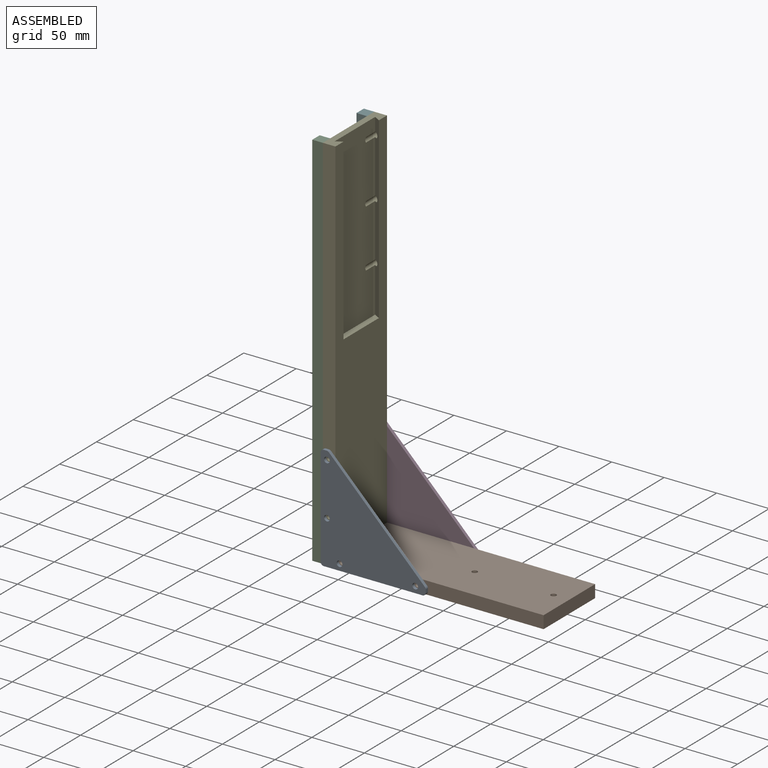
[diagram: assembled view]
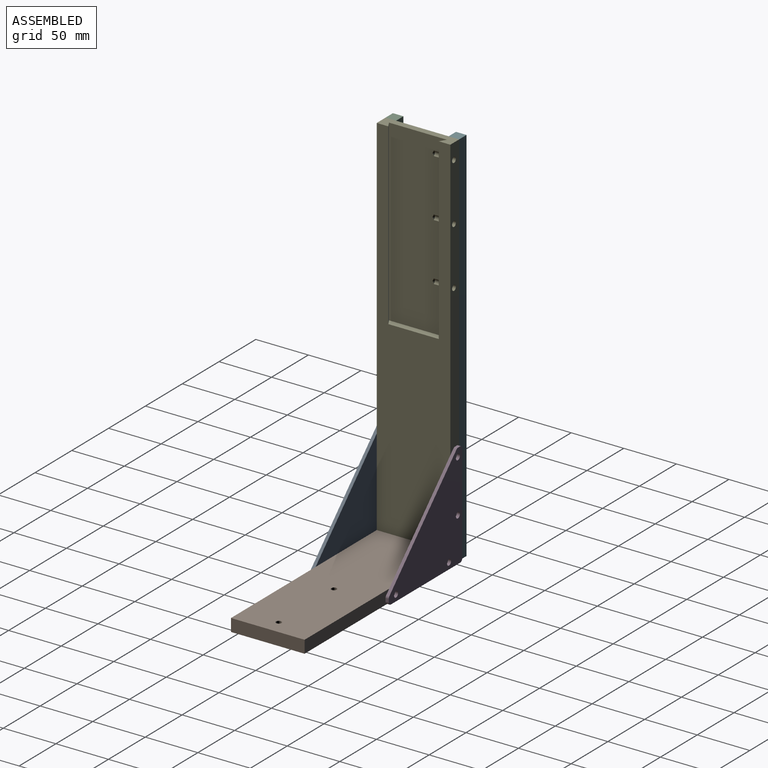
[diagram: assembled view, second angle]
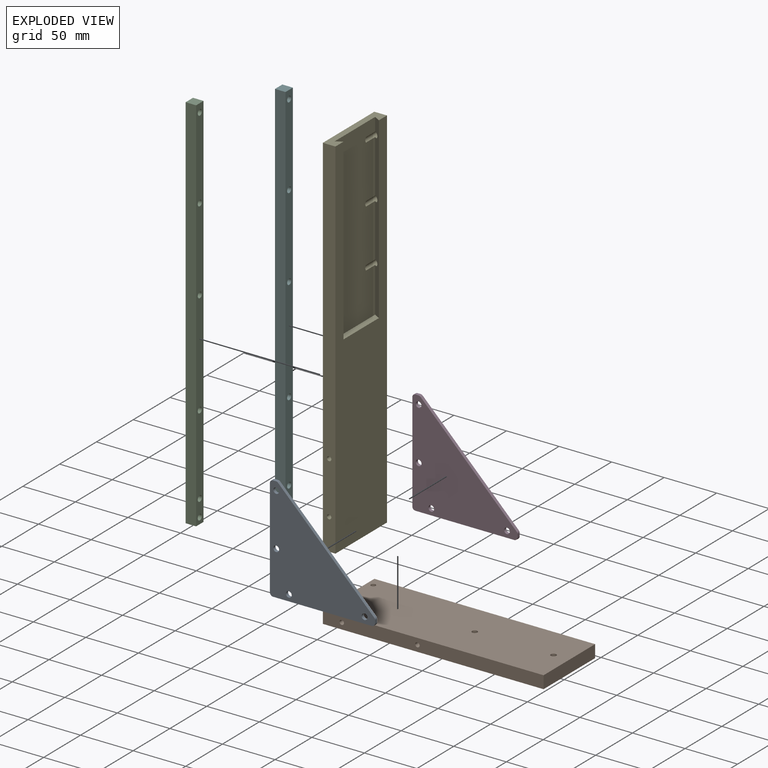
[diagram: exploded view]
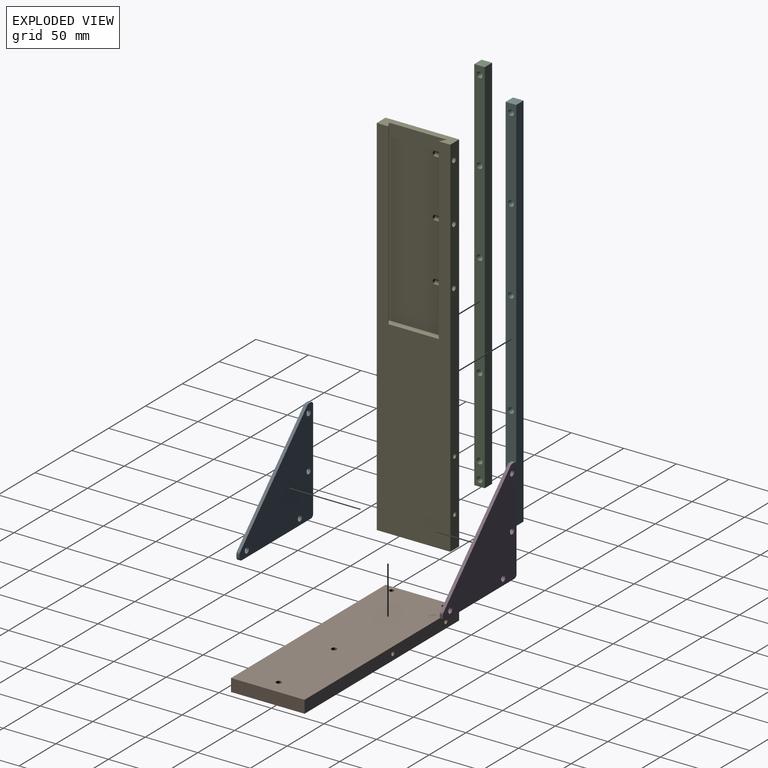
[diagram: exploded view, second angle]
ASSEMBLY  parts=6 mates=5
PART A: 16 faces, bbox 100x100x3 mm
  f0: plane 3x2.76mm, normal (0,1,0), area 8.3mm2, adj f1,f8,f9,f10
  f1: cylinder r=3mm len=3mm, axis (0,0,1), area 14.1mm2, adj f0,f2,f8,f9
  f2: plane 94x3mm, normal (-1,0,0), area 282mm2, adj f1,f3,f8,f9
  f3: cylinder r=3mm len=3mm, axis (0,0,1), area 14.1mm2, adj f2,f4,f8,f9
  f4: plane 94x3mm, normal (0,-1,0), area 282mm2, adj f3,f5,f8,f9
  f5: cylinder r=3mm len=3mm, axis (0,0,1), area 14.1mm2, adj f4,f6,f8,f9
  f6: plane 3x2.76mm, normal (1,0,0), area 8.3mm2, adj f5,f8,f9,f11
  f7: plane 91.24x91.24mm, normal (0.71,0.71,0), area 387.1mm2, adj f8,f9,f10,f11
  f8: plane 100x100mm, normal (0,0,1), area 5574.3mm2, adj f0,f1,f2,f3,f4,f5,f6,f7
  f9: plane 100x100mm, normal (0,0,-1), area 5574.3mm2, adj f0,f1,f2,f3,f4,f5,f6,f7
  f10: cylinder r=3mm len=3mm, axis (0,0,1), area 7.1mm2, adj f0,f7,f8,f9
  f11: cylinder r=3mm len=3mm, axis (0,0,1), area 7.1mm2, adj f6,f7,f8,f9
  f12: cylinder r=2.75mm len=5.5mm, axis (0,0,1), area 51.8mm2, adj f8,f9
  f13: cylinder r=2.75mm len=5.5mm, axis (0,0,1), area 51.8mm2, adj f8,f9
  f14: cylinder r=2.75mm len=5.5mm, axis (0,0,1), area 51.8mm2, adj f8,f9
  f15: cylinder r=2.75mm len=5.5mm, axis (0,0,1), area 51.8mm2, adj f8,f9
PART B: 26 faces, bbox 210x70x12 mm
  f0: plane 210x12mm, normal (0,-1,0), area 2492.3mm2, adj f1,f3,f4,f5,f19,f21
  f1: plane 70x12mm, normal (1,0,0), area 840mm2, adj f0,f2,f4,f5
  f2: plane 210x12mm, normal (0,1,0), area 2492.3mm2, adj f1,f3,f4,f5,f15,f17
  f3: plane 70x12mm, normal (-1,0,0), area 812.3mm2, adj f0,f2,f4,f5,f23,f25
  f4: plane 210x70mm, normal (0,0,1), area 14558.6mm2, adj f0,f1,f2,f3,f6,f7,f10,f13
  f5: plane 210x70mm, normal (0,0,-1), area 14627.3mm2, adj f0,f1,f2,f3,f6,f7,f8,f11
  f6: cylinder r=2.55mm len=12mm, axis (0,0,1), area 192.3mm2, adj f4,f5
  f7: cylinder r=2.55mm len=12mm, axis (0,0,1), area 192.3mm2, adj f4,f5
  f8: cylinder r=2.25mm len=8mm, axis (0,0,1), area 113.1mm2, adj f5,f9
  f9: plane 8x8mm, normal (0,0,1), area 34.4mm2, adj f8,f10
  f10: cylinder r=4mm len=8mm, axis (0,0,1), area 100.5mm2, adj f4,f9
  f11: cylinder r=2.25mm len=8mm, axis (0,0,1), area 113.1mm2, adj f5,f12
  f12: plane 8x8mm, normal (0,0,1), area 34.4mm2, adj f11,f13
  f13: cylinder r=4mm len=8mm, axis (0,0,1), area 100.5mm2, adj f4,f12
  f14: cone r=0mm half-angle=59deg, axis (0,1,0), area 16.2mm2, adj f15
  f15: cylinder r=2.1mm len=15mm, axis (0,1,0), area 197.9mm2, adj f2,f14
  f16: cone r=0mm half-angle=59deg, axis (0,1,0), area 16.2mm2, adj f17
  f17: cylinder r=2.1mm len=15mm, axis (0,1,0), area 197.9mm2, adj f2,f16
  f18: cone r=0mm half-angle=59deg, axis (0,-1,0), area 16.2mm2, adj f19
  f19: cylinder r=2.1mm len=15mm, axis (0,-1,0), area 197.9mm2, adj f0,f18
  f20: cone r=0mm half-angle=59deg, axis (0,-1,0), area 16.2mm2, adj f21
  f21: cylinder r=2.1mm len=15mm, axis (0,-1,0), area 197.9mm2, adj f0,f20
  f22: cone r=0mm half-angle=59deg, axis (-1,0,0), area 16.2mm2, adj f23
  f23: cylinder r=2.1mm len=10mm, axis (-1,0,0), area 131.9mm2, adj f3,f22
  f24: cone r=0mm half-angle=59deg, axis (-1,0,0), area 16.2mm2, adj f25
  f25: cylinder r=2.1mm len=10mm, axis (-1,0,0), area 131.9mm2, adj f3,f24
PART C: 18 faces, bbox 362x10x10 mm
  f0: plane 362x10mm, normal (0,-1,0), area 3620mm2, adj f1,f3,f4,f5
  f1: plane 10x10mm, normal (1,0,0), area 100mm2, adj f0,f2,f4,f5
  f2: plane 362x10mm, normal (0,1,0), area 3620mm2, adj f1,f3,f4,f5
  f3: plane 10x10mm, normal (-1,0,0), area 100mm2, adj f0,f2,f4,f5
  f4: plane 362x10mm, normal (0,0,1), area 3194.7mm2, adj f0,f1,f2,f3,f12,f13,f14,f15
  f5: plane 362x10mm, normal (0,0,-1), area 3477.5mm2, adj f0,f1,f2,f3,f6,f7,f8,f9
  f6: cylinder r=2.75mm len=8mm, axis (0,0,1), area 138.2mm2, adj f5,f13
  f7: cylinder r=2.75mm len=8mm, axis (0,0,1), area 138.2mm2, adj f5,f17
  f8: cylinder r=2.75mm len=8mm, axis (0,0,1), area 138.2mm2, adj f5,f16
  f9: cylinder r=2.75mm len=8mm, axis (0,0,1), area 138.2mm2, adj f5,f12
  f10: cylinder r=2.75mm len=8mm, axis (0,0,1), area 138.2mm2, adj f5,f14
  f11: cylinder r=2.75mm len=8mm, axis (0,0,1), area 138.2mm2, adj f5,f15
  f12: cone r=2.75mm half-angle=45deg, axis (0,0,1), area 66.6mm2, adj f4,f9
  f13: cone r=2.75mm half-angle=45deg, axis (0,0,1), area 66.6mm2, adj f4,f6
  f14: cone r=2.75mm half-angle=45deg, axis (0,0,1), area 66.6mm2, adj f4,f10
  f15: cone r=2.75mm half-angle=45deg, axis (0,0,1), area 66.6mm2, adj f4,f11
  f16: cone r=2.75mm half-angle=45deg, axis (0,0,1), area 66.6mm2, adj f4,f8
  f17: cone r=2.75mm half-angle=45deg, axis (0,0,1), area 66.6mm2, adj f4,f7
PART D: same geometry as A
PART E: 48 faces, bbox 350x70x12 mm
  f0: plane 170x55mm, normal (0,0,1), area 9166.1mm2, adj f1,f7,f8,f9,f34,f35,f36,f37
  f1: plane 70x12mm, normal (1,0,0), area 531mm2, adj f0,f2,f3,f5,f6,f8,f9
  f2: plane 350x12mm, normal (0,-1,0), area 4111mm2, adj f1,f4,f5,f6,f35,f37,f39,f45
  f3: plane 350x12mm, normal (0,1,0), area 4172.3mm2, adj f1,f4,f5,f6,f41,f43
  f4: plane 70x12mm, normal (-1,0,0), area 823.9mm2, adj f2,f3,f5,f6,f11,f13
  f5: plane 350x70mm, normal (0,0,1), area 16340mm2, adj f1,f2,f3,f4,f7,f8,f9
  f6: plane 350x70mm, normal (0,0,-1), area 24361.5mm2, adj f1,f2,f3,f4,f15,f17,f19,f21
  f7: plane 55x6mm, normal (1,0,0), area 309mm2, adj f0,f5,f8,f9
  f8: plane 170x6mm, normal (0,0.86,-0.5), area 1128.1mm2, adj f0,f1,f5,f7,f35,f37,f39
  f9: plane 170x6mm, normal (0,-0.86,-0.5), area 1180.9mm2, adj f0,f1,f5,f7
  f10: cone r=0mm half-angle=59deg, axis (-1,0,0), area 9.4mm2, adj f11
  f11: cylinder r=1.6mm len=15mm, axis (-1,0,0), area 150.8mm2, adj f4,f10
  f12: cone r=0mm half-angle=59deg, axis (-1,0,0), area 9.4mm2, adj f13
  f13: cylinder r=1.6mm len=15mm, axis (-1,0,0), area 150.8mm2, adj f4,f12
  f14: cone r=0mm half-angle=59deg, axis (0,0,-1), area 16.2mm2, adj f15
  f15: cylinder r=2.1mm len=5mm, axis (0,0,-1), area 66mm2, adj f6,f14
  f16: cone r=0mm half-angle=59deg, axis (0,0,-1), area 16.2mm2, adj f17
  f17: cylinder r=2.1mm len=5mm, axis (0,0,-1), area 66mm2, adj f6,f16
  f18: cone r=0mm half-angle=59deg, axis (0,0,-1), area 16.2mm2, adj f19
  f19: cylinder r=2.1mm len=5mm, axis (0,0,-1), area 66mm2, adj f6,f18
  f20: cone r=0mm half-angle=59deg, axis (0,0,-1), area 16.2mm2, adj f21
  f21: cylinder r=2.1mm len=5mm, axis (0,0,-1), area 66mm2, adj f6,f20
  f22: cone r=0mm half-angle=59deg, axis (0,0,-1), area 16.2mm2, adj f23
  f23: cylinder r=2.1mm len=5mm, axis (0,0,-1), area 66mm2, adj f6,f22
  f24: cone r=0mm half-angle=59deg, axis (0,0,-1), area 16.2mm2, adj f25
  f25: cylinder r=2.1mm len=5mm, axis (0,0,-1), area 66mm2, adj f6,f24
  f26: cone r=0mm half-angle=59deg, axis (0,0,-1), area 16.2mm2, adj f27
  f27: cylinder r=2.1mm len=5mm, axis (0,0,-1), area 66mm2, adj f6,f26
  f28: cone r=0mm half-angle=59deg, axis (0,0,-1), area 16.2mm2, adj f29
  f29: cylinder r=2.1mm len=5mm, axis (0,0,-1), area 66mm2, adj f6,f28
  f30: cone r=0mm half-angle=59deg, axis (0,0,-1), area 16.2mm2, adj f31
  f31: cylinder r=2.1mm len=5mm, axis (0,0,-1), area 66mm2, adj f6,f30
  f32: cone r=0mm half-angle=59deg, axis (0,0,-1), area 16.2mm2, adj f33
  f33: cylinder r=2.1mm len=5mm, axis (0,0,-1), area 66mm2, adj f6,f32
  f34: cone r=0mm half-angle=59deg, axis (0,-1,0), area 6.1mm2, adj f0,f35
  f35: cylinder r=2.55mm len=20mm, axis (0,-1,0), area 207.5mm2, adj f0,f2,f8,f34
  f36: cone r=0mm half-angle=59deg, axis (0,-1,0), area 6.1mm2, adj f0,f37
  f37: cylinder r=2.55mm len=20mm, axis (0,-1,0), area 207.5mm2, adj f0,f2,f8,f36
  f38: cone r=0mm half-angle=59deg, axis (0,-1,0), area 6.1mm2, adj f0,f39
  f39: cylinder r=2.55mm len=20mm, axis (0,-1,0), area 207.5mm2, adj f0,f2,f8,f38
  f40: cone r=0mm half-angle=59deg, axis (0,1,0), area 16.2mm2, adj f41
  f41: cylinder r=2.1mm len=15mm, axis (0,1,0), area 197.9mm2, adj f3,f40
  f42: cone r=0mm half-angle=59deg, axis (0,1,0), area 16.2mm2, adj f43
  f43: cylinder r=2.1mm len=15mm, axis (0,1,0), area 197.9mm2, adj f3,f42
  f44: cone r=0mm half-angle=59deg, axis (0,-1,0), area 16.2mm2, adj f45
  f45: cylinder r=2.1mm len=15mm, axis (0,-1,0), area 197.9mm2, adj f2,f44
  f46: cone r=0mm half-angle=59deg, axis (0,-1,0), area 16.2mm2, adj f47
  f47: cylinder r=2.1mm len=15mm, axis (0,-1,0), area 197.9mm2, adj f2,f46
PART F: same geometry as C
PLACE A rot(axis=(-0.58,-0.58,-0.58),120deg) t=(-55.07,-38,38)mm
PLACE B rot(axis=(1,0,0),180deg) t=(-0.07,0,0)mm
PLACE C rot(axis=(0,-1,0),90deg) t=(-105.07,-30,169)mm
PLACE D rot(axis=(-0.58,-0.58,-0.58),120deg) t=(-55.07,35,38)mm
PLACE E rot(axis=(-0.71,0,-0.71),180deg) t=(-105.07,0,175)mm
PLACE F rot(axis=(0,-1,0),90deg) t=(-105.07,30,169)mm
MATE fastened C.f11 <-> E.f32  axis (1,0,0) through (-105.07,-30,342)mm
MATE fastened F.f11 <-> E.f16  axis (1,0,0) through (-105.07,30,342)mm
MATE fastened D.f12 <-> E.f42  axis (0,-1,0) through (-99.07,35,80)mm
MATE fastened E.f10 <-> B.f8  axis (0,0,-1) through (-99.07,25,0)mm
MATE fastened A.f12 <-> E.f42  axis (0,1,0) through (-99.07,-35,80)mm
